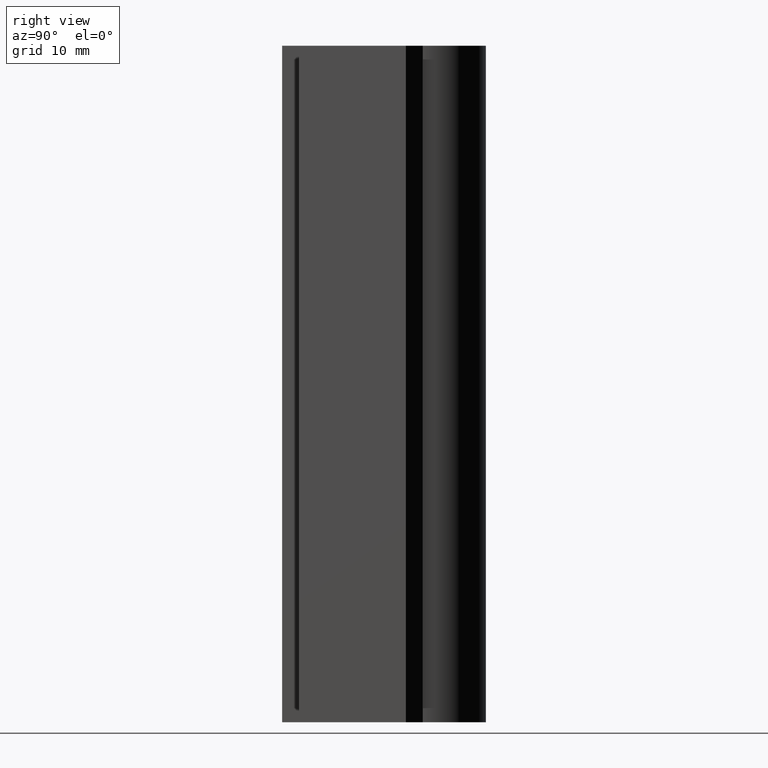
[diagram: clean part render]
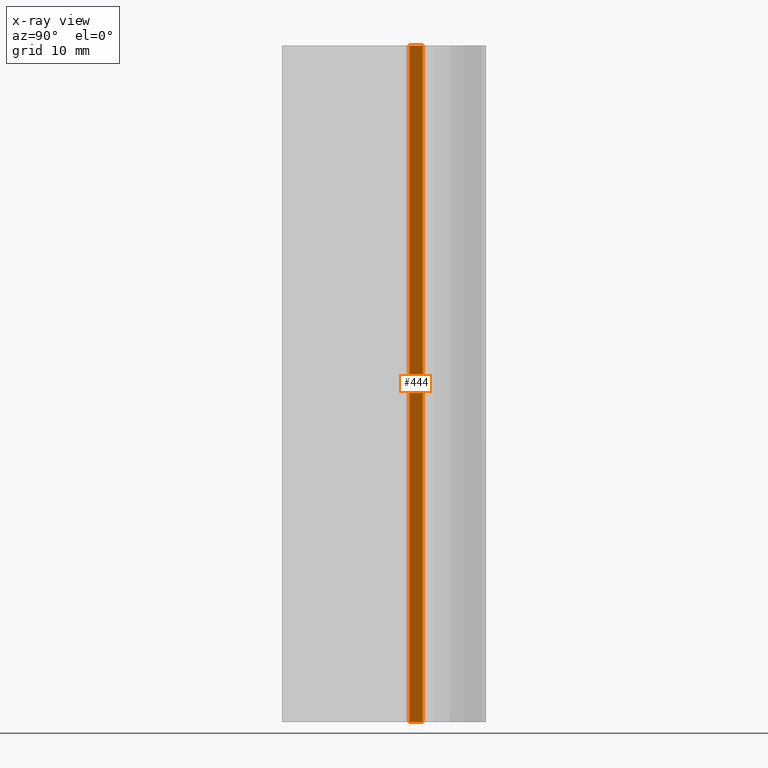
[diagram: x-ray — body ghosted, one internal face saturated and labeled with its STEP entity id]
A machine part, right view, then the same camera in x-ray: the body is ghosted and one INTERNAL B-rep face — a face not visible from any outside direction — is saturated and labeled: STEP entity #444.
In plain terms, the highlighted planar face has unit normal (0.9972, -0.0746, 0).
Its self-contained STEP definition (entity closure, byte-faithful):
#32=FACE_OUTER_BOUND('',#57,.T.);
#57=EDGE_LOOP('',(#297,#298,#299,#300));
#82=LINE('',#653,#137);
#83=LINE('',#655,#138);
#84=LINE('',#657,#139);
#85=LINE('',#658,#140);
#137=VECTOR('',#530,10.);
#138=VECTOR('',#531,10.);
#139=VECTOR('',#532,10.);
#140=VECTOR('',#533,10.);
#192=VERTEX_POINT('',#651);
#193=VERTEX_POINT('',#652);
#194=VERTEX_POINT('',#654);
#195=VERTEX_POINT('',#656);
#234=EDGE_CURVE('',#192,#193,#82,.T.);
#235=EDGE_CURVE('',#194,#192,#83,.T.);
#236=EDGE_CURVE('',#195,#194,#84,.T.);
#237=EDGE_CURVE('',#193,#195,#85,.T.);
#297=ORIENTED_EDGE('',*,*,#234,.F.);
#298=ORIENTED_EDGE('',*,*,#235,.F.);
#299=ORIENTED_EDGE('',*,*,#236,.F.);
#300=ORIENTED_EDGE('',*,*,#237,.F.);
#423=PLANE('',#493);
#444=ADVANCED_FACE('',(#32),#423,.T.);
#493=AXIS2_PLACEMENT_3D('',#650,#528,#529);
#528=DIRECTION('center_axis',(0.997211597189078,-0.0746259367218186,0.));
#529=DIRECTION('ref_axis',(0.,0.,-1.));
#530=DIRECTION('',(-0.0746259367218186,-0.997211597189078,0.));
#531=DIRECTION('',(0.,0.,-1.));
#532=DIRECTION('',(0.0746259367218186,0.997211597189078,0.));
#533=DIRECTION('',(0.,0.,1.));
#650=CARTESIAN_POINT('Origin',(-23.7759935036606,19.2939924968619,100.));
#651=CARTESIAN_POINT('',(-23.6256867600048,21.3025117127487,0.));
#652=CARTESIAN_POINT('',(-23.7759935036606,19.2939924968619,0.));
#653=CARTESIAN_POINT('',(-23.7110585286852,20.1617056935492,-8.88178419700125E-15));
#654=CARTESIAN_POINT('',(-23.6256867600048,21.3025117127487,100.));
#655=CARTESIAN_POINT('',(-23.6256867600048,21.3025117127487,100.));
#656=CARTESIAN_POINT('',(-23.7759935036606,19.2939924968619,100.));
#657=CARTESIAN_POINT('',(-23.7759935036606,19.2939924968619,100.));
#658=CARTESIAN_POINT('',(-23.7759935036606,19.2939924968619,0.));